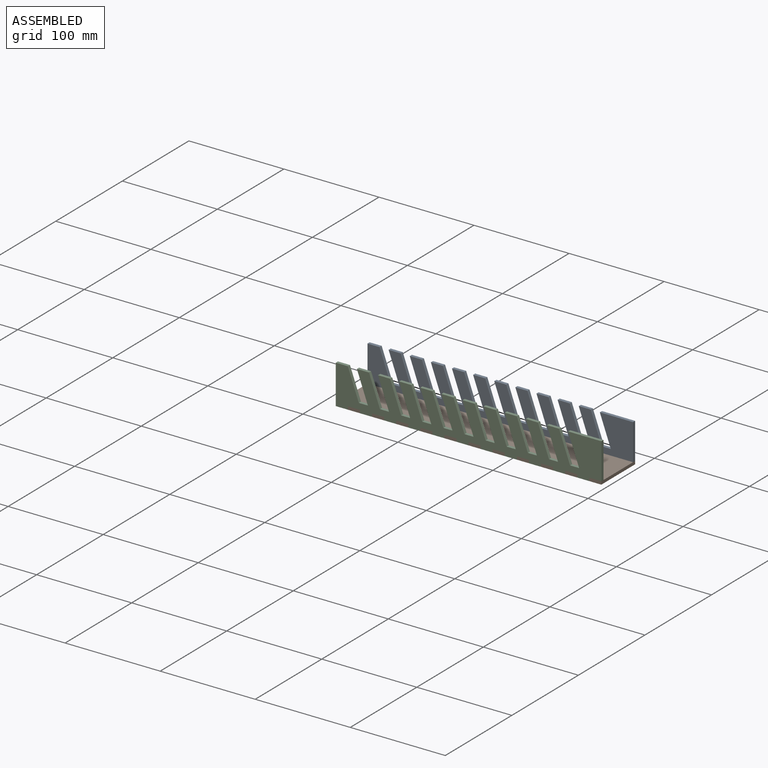
[diagram: assembled view]
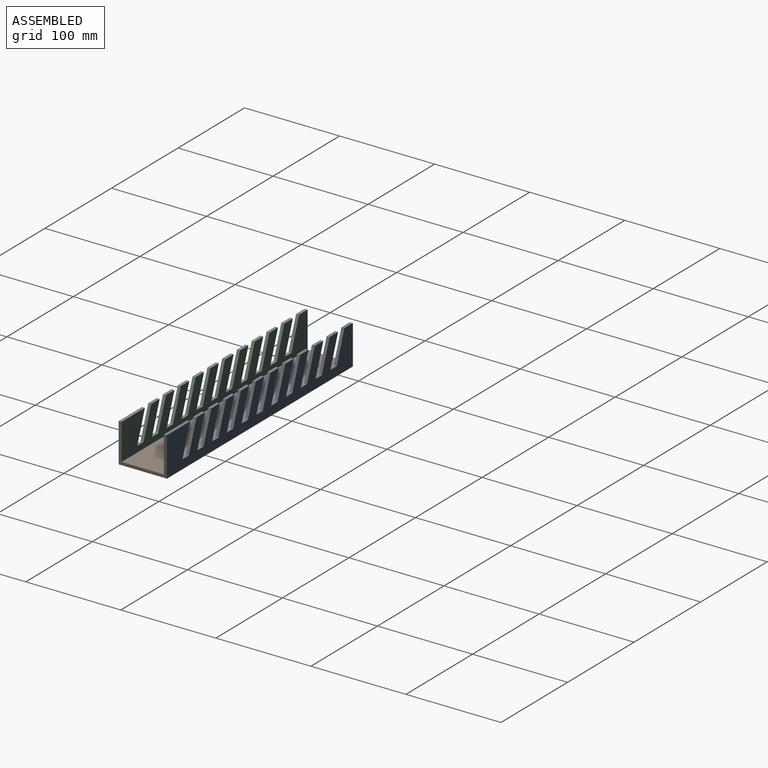
[diagram: assembled view, second angle]
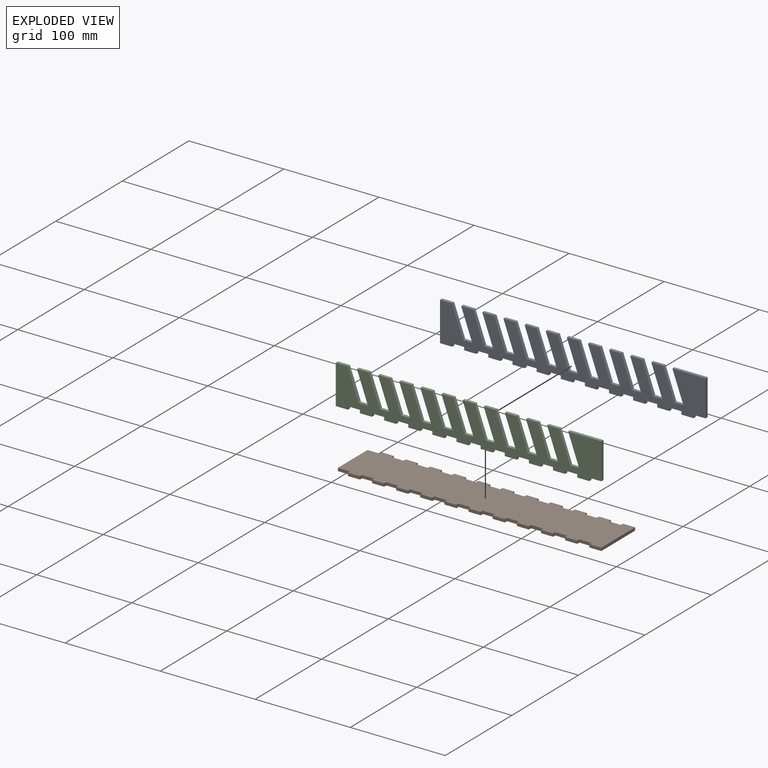
[diagram: exploded view]
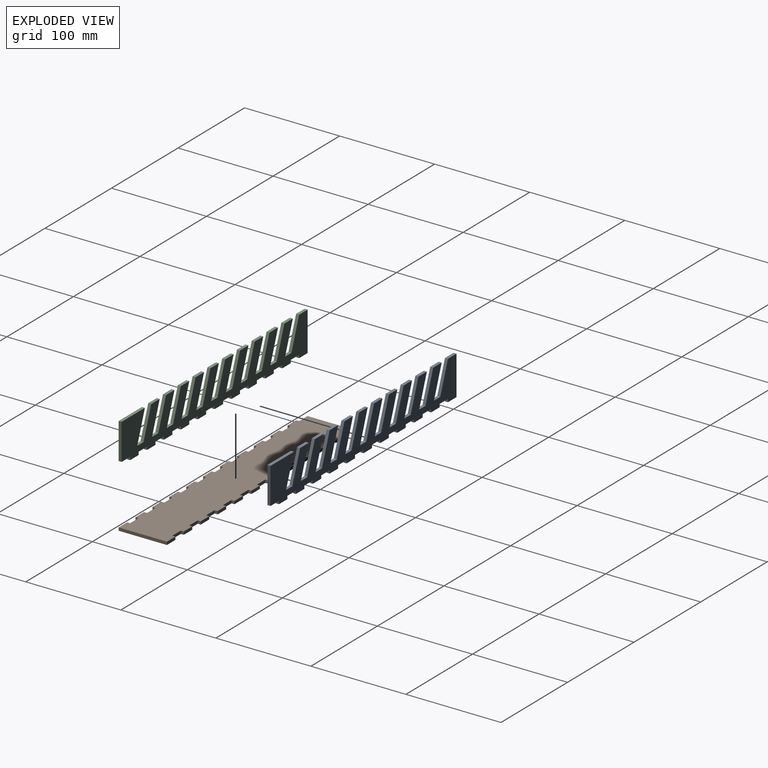
[diagram: exploded view, second angle]
ASSEMBLY  parts=3 mates=2
PART A: 92 faces, bbox 279.4x3.2x41.3 mm
  f0: plane 3.18x3.18mm, normal (-1,0,0), area 10.1mm2, adj f1,f89,f90,f91
  f1: plane 12.7x3.18mm, normal (0,0,-1), area 40.3mm2, adj f0,f2,f90,f91
  f2: plane 3.18x3.18mm, normal (1,0,0), area 10.1mm2, adj f1,f3,f90,f91
  f3: plane 12.7x3.18mm, normal (0,0,-1), area 40.3mm2, adj f2,f4,f90,f91
  f4: plane 3.18x3.18mm, normal (-1,0,0), area 10.1mm2, adj f3,f5,f90,f91
  f5: plane 12.7x3.18mm, normal (0,0,-1), area 40.3mm2, adj f4,f6,f90,f91
  f6: plane 3.18x3.18mm, normal (1,0,0), area 10.1mm2, adj f5,f7,f90,f91
  f7: plane 12.7x3.18mm, normal (0,0,-1), area 40.3mm2, adj f6,f8,f90,f91
  f8: plane 3.18x3.18mm, normal (-1,0,0), area 10.1mm2, adj f7,f9,f90,f91
  f9: plane 12.7x3.18mm, normal (0,0,-1), area 40.3mm2, adj f8,f10,f90,f91
  f10: plane 3.18x3.18mm, normal (1,0,0), area 10.1mm2, adj f9,f11,f90,f91
  f11: plane 12.7x3.18mm, normal (0,0,-1), area 40.3mm2, adj f10,f12,f90,f91
  f12: plane 3.18x3.18mm, normal (-1,0,0), area 10.1mm2, adj f11,f13,f90,f91
  f13: plane 12.7x3.18mm, normal (0,0,-1), area 40.3mm2, adj f12,f14,f90,f91
  f14: plane 3.18x3.18mm, normal (1,0,0), area 10.1mm2, adj f13,f15,f90,f91
  f15: plane 12.7x3.18mm, normal (0,0,-1), area 40.3mm2, adj f14,f16,f90,f91
  f16: plane 3.18x3.18mm, normal (-1,0,0), area 10.1mm2, adj f15,f17,f90,f91
  f17: plane 12.7x3.18mm, normal (0,0,-1), area 40.3mm2, adj f16,f18,f90,f91
  f18: plane 3.18x3.18mm, normal (1,0,0), area 10.1mm2, adj f17,f19,f90,f91
  f19: plane 12.7x3.18mm, normal (0,0,-1), area 40.3mm2, adj f18,f20,f90,f91
  f20: plane 3.18x3.18mm, normal (-1,0,0), area 10.1mm2, adj f19,f21,f90,f91
  f21: plane 12.7x3.18mm, normal (0,0,-1), area 40.3mm2, adj f20,f22,f90,f91
  f22: plane 3.18x3.18mm, normal (1,0,0), area 10.1mm2, adj f21,f23,f90,f91
  f23: plane 12.7x3.18mm, normal (0,0,-1), area 40.3mm2, adj f22,f24,f90,f91
  f24: plane 3.18x3.18mm, normal (-1,0,0), area 10.1mm2, adj f23,f25,f90,f91
  f25: plane 12.7x3.18mm, normal (0,0,-1), area 40.3mm2, adj f24,f26,f90,f91
  f26: plane 3.18x3.18mm, normal (1,0,0), area 10.1mm2, adj f25,f27,f90,f91
  f27: plane 12.7x3.18mm, normal (0,0,-1), area 40.3mm2, adj f26,f28,f90,f91
  f28: plane 3.18x3.18mm, normal (-1,0,0), area 10.1mm2, adj f27,f29,f90,f91
  f29: plane 12.7x3.18mm, normal (0,0,-1), area 40.3mm2, adj f28,f30,f90,f91
  f30: plane 3.18x3.18mm, normal (1,0,0), area 10.1mm2, adj f29,f31,f90,f91
  f31: plane 12.7x3.18mm, normal (0,0,-1), area 40.3mm2, adj f30,f32,f90,f91
  f32: plane 3.18x3.18mm, normal (-1,0,0), area 10.1mm2, adj f31,f33,f90,f91
  f33: plane 12.7x3.18mm, normal (0,0,-1), area 40.3mm2, adj f32,f34,f90,f91
  f34: plane 3.18x3.18mm, normal (1,0,0), area 10.1mm2, adj f33,f35,f90,f91
  f35: plane 12.7x3.18mm, normal (0,0,-1), area 40.3mm2, adj f34,f36,f90,f91
  f36: plane 3.18x3.18mm, normal (-1,0,0), area 10.1mm2, adj f35,f37,f90,f91
  f37: plane 12.7x3.18mm, normal (0,0,-1), area 40.3mm2, adj f36,f38,f90,f91
  f38: plane 3.18x3.18mm, normal (1,0,0), area 10.1mm2, adj f37,f39,f90,f91
  f39: plane 12.7x3.18mm, normal (0,0,-1), area 40.3mm2, adj f38,f40,f90,f91
  f40: plane 38.1x3.18mm, normal (1,0,0), area 121mm2, adj f39,f41,f90,f91
  f41: plane 34.93x3.18mm, normal (0,0,1), area 110.9mm2, adj f40,f42,f90,f91
  f42: plane 31.75x11.56mm, normal (-0.94,0,-0.34), area 107.3mm2, adj f41,f43,f90,f91
  f43: plane 9.53x3.18mm, normal (0,0,1), area 30.2mm2, adj f42,f44,f90,f91
  f44: plane 31.75x11.56mm, normal (0.94,0,0.34), area 107.3mm2, adj f43,f45,f90,f91
  f45: plane 12.7x3.18mm, normal (0,0,1), area 40.3mm2, adj f44,f46,f90,f91
  f46: plane 31.75x11.56mm, normal (-0.94,0,-0.34), area 107.3mm2, adj f45,f47,f90,f91
  f47: plane 9.53x3.18mm, normal (0,0,1), area 30.2mm2, adj f46,f48,f90,f91
  f48: plane 31.75x11.56mm, normal (0.94,0,0.34), area 107.3mm2, adj f47,f49,f90,f91
  f49: plane 12.7x3.18mm, normal (0,0,1), area 40.3mm2, adj f48,f50,f90,f91
  f50: plane 31.75x11.56mm, normal (-0.94,0,-0.34), area 107.3mm2, adj f49,f51,f90,f91
  f51: plane 9.53x3.18mm, normal (0,0,1), area 30.2mm2, adj f50,f52,f90,f91
  f52: plane 31.75x11.56mm, normal (0.94,0,0.34), area 107.3mm2, adj f51,f53,f90,f91
  f53: plane 12.7x3.18mm, normal (0,0,1), area 40.3mm2, adj f52,f54,f90,f91
  f54: plane 31.75x11.56mm, normal (-0.94,0,-0.34), area 107.3mm2, adj f53,f55,f90,f91
  f55: plane 9.53x3.18mm, normal (0,0,1), area 30.2mm2, adj f54,f56,f90,f91
  f56: plane 31.75x11.56mm, normal (0.94,0,0.34), area 107.3mm2, adj f55,f57,f90,f91
  f57: plane 12.7x3.18mm, normal (0,0,1), area 40.3mm2, adj f56,f58,f90,f91
  f58: plane 31.75x11.56mm, normal (-0.94,0,-0.34), area 107.3mm2, adj f57,f59,f90,f91
  f59: plane 9.53x3.18mm, normal (0,0,1), area 30.2mm2, adj f58,f60,f90,f91
  f60: plane 31.75x11.56mm, normal (0.94,0,0.34), area 107.3mm2, adj f59,f61,f90,f91
  f61: plane 12.7x3.18mm, normal (0,0,1), area 40.3mm2, adj f60,f62,f90,f91
  f62: plane 31.75x11.56mm, normal (-0.94,0,-0.34), area 107.3mm2, adj f61,f63,f90,f91
  f63: plane 9.53x3.18mm, normal (0,0,1), area 30.2mm2, adj f62,f64,f90,f91
  f64: plane 31.75x11.56mm, normal (0.94,0,0.34), area 107.3mm2, adj f63,f65,f90,f91
  f65: plane 12.7x3.18mm, normal (0,0,1), area 40.3mm2, adj f64,f66,f90,f91
  f66: plane 31.75x11.56mm, normal (-0.94,0,-0.34), area 107.3mm2, adj f65,f67,f90,f91
  f67: plane 9.53x3.18mm, normal (0,0,1), area 30.2mm2, adj f66,f68,f90,f91
  f68: plane 31.75x11.56mm, normal (0.94,0,0.34), area 107.3mm2, adj f67,f69,f90,f91
  f69: plane 12.7x3.18mm, normal (0,0,1), area 40.3mm2, adj f68,f70,f90,f91
  f70: plane 31.75x11.56mm, normal (-0.94,0,-0.34), area 107.3mm2, adj f69,f71,f90,f91
  f71: plane 9.53x3.18mm, normal (0,0,1), area 30.2mm2, adj f70,f72,f90,f91
  f72: plane 31.75x11.56mm, normal (0.94,0,0.34), area 107.3mm2, adj f71,f73,f90,f91
  f73: plane 12.7x3.18mm, normal (0,0,1), area 40.3mm2, adj f72,f74,f90,f91
  f74: plane 31.75x11.56mm, normal (-0.94,0,-0.34), area 107.3mm2, adj f73,f75,f90,f91
  f75: plane 9.53x3.18mm, normal (0,0,1), area 30.2mm2, adj f74,f76,f90,f91
  f76: plane 31.75x11.56mm, normal (0.94,0,0.34), area 107.3mm2, adj f75,f77,f90,f91
  f77: plane 12.7x3.18mm, normal (0,0,1), area 40.3mm2, adj f76,f78,f90,f91
  f78: plane 31.75x11.56mm, normal (-0.94,0,-0.34), area 107.3mm2, adj f77,f79,f90,f91
  f79: plane 9.53x3.18mm, normal (0,0,1), area 30.2mm2, adj f78,f80,f90,f91
  f80: plane 31.75x11.56mm, normal (0.94,0,0.34), area 107.3mm2, adj f79,f81,f90,f91
  f81: plane 12.7x3.18mm, normal (0,0,1), area 40.3mm2, adj f80,f82,f90,f91
  f82: plane 31.75x11.56mm, normal (-0.94,0,-0.34), area 107.3mm2, adj f81,f83,f90,f91
  f83: plane 9.53x3.18mm, normal (0,0,1), area 30.2mm2, adj f82,f84,f90,f91
  f84: plane 31.75x11.56mm, normal (0.94,0,0.34), area 107.3mm2, adj f83,f85,f90,f91
  f85: plane 12.7x3.18mm, normal (0,0,1), area 40.3mm2, adj f84,f86,f90,f91
  f86: plane 41.28x3.18mm, normal (-1,0,0), area 131mm2, adj f85,f87,f90,f91
  f87: plane 12.7x3.18mm, normal (0,0,-1), area 40.3mm2, adj f86,f88,f90,f91
  f88: plane 3.18x3.18mm, normal (1,0,0), area 10.1mm2, adj f87,f89,f90,f91
  f89: plane 12.7x3.18mm, normal (0,0,-1), area 40.3mm2, adj f0,f88,f90,f91
  f90: plane 279.4x41.28mm, normal (0,-1,0), area 7762.1mm2, adj f0,f1,f2,f3,f4,f5,f6,f7
  f91: plane 279.4x41.28mm, normal (0,1,0), area 7762.1mm2, adj f0,f1,f2,f3,f4,f5,f6,f7
PART B: 90 faces, bbox 279.4x3.2x50.8 mm
  f0: plane 3.18x3.18mm, normal (1,0,0), area 10.1mm2, adj f1,f87,f88,f89
  f1: plane 12.7x3.18mm, normal (0,0,1), area 40.3mm2, adj f0,f2,f88,f89
  f2: plane 3.18x3.18mm, normal (-1,0,0), area 10.1mm2, adj f1,f3,f88,f89
  f3: plane 12.7x3.18mm, normal (0,0,1), area 40.3mm2, adj f2,f4,f88,f89
  f4: plane 3.18x3.18mm, normal (1,0,0), area 10.1mm2, adj f3,f5,f88,f89
  f5: plane 12.7x3.18mm, normal (0,0,1), area 40.3mm2, adj f4,f6,f88,f89
  f6: plane 3.18x3.18mm, normal (-1,0,0), area 10.1mm2, adj f5,f7,f88,f89
  f7: plane 12.7x3.18mm, normal (0,0,1), area 40.3mm2, adj f6,f8,f88,f89
  f8: plane 44.45x3.18mm, normal (-1,0,0), area 141.1mm2, adj f7,f9,f88,f89
  f9: plane 12.7x3.18mm, normal (0,0,-1), area 40.3mm2, adj f8,f10,f88,f89
  f10: plane 3.18x3.18mm, normal (-1,0,0), area 10.1mm2, adj f9,f11,f88,f89
  f11: plane 12.7x3.18mm, normal (0,0,-1), area 40.3mm2, adj f10,f12,f88,f89
  f12: plane 3.18x3.18mm, normal (1,0,0), area 10.1mm2, adj f11,f13,f88,f89
  f13: plane 12.7x3.18mm, normal (0,0,-1), area 40.3mm2, adj f12,f14,f88,f89
  f14: plane 3.18x3.18mm, normal (-1,0,0), area 10.1mm2, adj f13,f15,f88,f89
  f15: plane 12.7x3.18mm, normal (0,0,-1), area 40.3mm2, adj f14,f16,f88,f89
  f16: plane 3.18x3.18mm, normal (1,0,0), area 10.1mm2, adj f15,f17,f88,f89
  f17: plane 12.7x3.18mm, normal (0,0,-1), area 40.3mm2, adj f16,f18,f88,f89
  f18: plane 3.18x3.18mm, normal (-1,0,0), area 10.1mm2, adj f17,f19,f88,f89
  f19: plane 12.7x3.18mm, normal (0,0,-1), area 40.3mm2, adj f18,f20,f88,f89
  f20: plane 3.18x3.18mm, normal (1,0,0), area 10.1mm2, adj f19,f21,f88,f89
  f21: plane 12.7x3.18mm, normal (0,0,-1), area 40.3mm2, adj f20,f22,f88,f89
  f22: plane 3.18x3.18mm, normal (-1,0,0), area 10.1mm2, adj f21,f23,f88,f89
  f23: plane 12.7x3.18mm, normal (0,0,-1), area 40.3mm2, adj f22,f24,f88,f89
  f24: plane 3.18x3.18mm, normal (1,0,0), area 10.1mm2, adj f23,f25,f88,f89
  f25: plane 12.7x3.18mm, normal (0,0,-1), area 40.3mm2, adj f24,f26,f88,f89
  f26: plane 3.18x3.18mm, normal (-1,0,0), area 10.1mm2, adj f25,f27,f88,f89
  f27: plane 12.7x3.18mm, normal (0,0,-1), area 40.3mm2, adj f26,f28,f88,f89
  f28: plane 3.18x3.18mm, normal (1,0,0), area 10.1mm2, adj f27,f29,f88,f89
  f29: plane 12.7x3.18mm, normal (0,0,-1), area 40.3mm2, adj f28,f30,f88,f89
  f30: plane 3.18x3.18mm, normal (-1,0,0), area 10.1mm2, adj f29,f31,f88,f89
  f31: plane 12.7x3.18mm, normal (0,0,-1), area 40.3mm2, adj f30,f32,f88,f89
  f32: plane 3.18x3.18mm, normal (1,0,0), area 10.1mm2, adj f31,f33,f88,f89
  f33: plane 12.7x3.18mm, normal (0,0,-1), area 40.3mm2, adj f32,f34,f88,f89
  f34: plane 3.18x3.18mm, normal (-1,0,0), area 10.1mm2, adj f33,f35,f88,f89
  f35: plane 12.7x3.18mm, normal (0,0,-1), area 40.3mm2, adj f34,f36,f88,f89
  f36: plane 3.18x3.18mm, normal (1,0,0), area 10.1mm2, adj f35,f37,f88,f89
  f37: plane 12.7x3.18mm, normal (0,0,-1), area 40.3mm2, adj f36,f38,f88,f89
  f38: plane 3.18x3.18mm, normal (-1,0,0), area 10.1mm2, adj f37,f39,f88,f89
  f39: plane 12.7x3.18mm, normal (0,0,-1), area 40.3mm2, adj f38,f40,f88,f89
  f40: plane 3.18x3.18mm, normal (1,0,0), area 10.1mm2, adj f39,f41,f88,f89
  f41: plane 12.7x3.18mm, normal (0,0,-1), area 40.3mm2, adj f40,f42,f88,f89
  f42: plane 3.18x3.18mm, normal (-1,0,0), area 10.1mm2, adj f41,f43,f88,f89
  f43: plane 12.7x3.18mm, normal (0,0,-1), area 40.3mm2, adj f42,f44,f88,f89
  f44: plane 3.18x3.18mm, normal (1,0,0), area 10.1mm2, adj f43,f45,f88,f89
  f45: plane 12.7x3.18mm, normal (0,0,-1), area 40.3mm2, adj f44,f46,f88,f89
  f46: plane 3.18x3.18mm, normal (-1,0,0), area 10.1mm2, adj f45,f47,f88,f89
  f47: plane 12.7x3.18mm, normal (0,0,-1), area 40.3mm2, adj f46,f48,f88,f89
  f48: plane 3.18x3.18mm, normal (1,0,0), area 10.1mm2, adj f47,f49,f88,f89
  f49: plane 12.7x3.18mm, normal (0,0,-1), area 40.3mm2, adj f48,f50,f88,f89
  f50: plane 3.18x3.18mm, normal (-1,0,0), area 10.1mm2, adj f49,f51,f88,f89
  f51: plane 12.7x3.18mm, normal (0,0,-1), area 40.3mm2, adj f50,f52,f88,f89
  f52: plane 50.8x3.18mm, normal (1,0,0), area 161.3mm2, adj f51,f53,f88,f89
  f53: plane 12.7x3.18mm, normal (0,0,1), area 40.3mm2, adj f52,f54,f88,f89
  f54: plane 3.18x3.18mm, normal (-1,0,0), area 10.1mm2, adj f53,f55,f88,f89
  f55: plane 12.7x3.18mm, normal (0,0,1), area 40.3mm2, adj f54,f56,f88,f89
  f56: plane 3.18x3.18mm, normal (1,0,0), area 10.1mm2, adj f55,f57,f88,f89
  f57: plane 12.7x3.18mm, normal (0,0,1), area 40.3mm2, adj f56,f58,f88,f89
  f58: plane 3.18x3.18mm, normal (-1,0,0), area 10.1mm2, adj f57,f59,f88,f89
  f59: plane 12.7x3.18mm, normal (0,0,1), area 40.3mm2, adj f58,f60,f88,f89
  f60: plane 3.18x3.18mm, normal (1,0,0), area 10.1mm2, adj f59,f61,f88,f89
  f61: plane 12.7x3.18mm, normal (0,0,1), area 40.3mm2, adj f60,f62,f88,f89
  f62: plane 3.18x3.18mm, normal (-1,0,0), area 10.1mm2, adj f61,f63,f88,f89
  f63: plane 12.7x3.18mm, normal (0,0,1), area 40.3mm2, adj f62,f64,f88,f89
  f64: plane 3.18x3.18mm, normal (1,0,0), area 10.1mm2, adj f63,f65,f88,f89
  f65: plane 12.7x3.18mm, normal (0,0,1), area 40.3mm2, adj f64,f66,f88,f89
  f66: plane 3.18x3.18mm, normal (-1,0,0), area 10.1mm2, adj f65,f67,f88,f89
  f67: plane 12.7x3.18mm, normal (0,0,1), area 40.3mm2, adj f66,f68,f88,f89
  f68: plane 3.18x3.18mm, normal (1,0,0), area 10.1mm2, adj f67,f69,f88,f89
  f69: plane 12.7x3.18mm, normal (0,0,1), area 40.3mm2, adj f68,f70,f88,f89
  f70: plane 3.18x3.18mm, normal (-1,0,0), area 10.1mm2, adj f69,f71,f88,f89
  f71: plane 12.7x3.18mm, normal (0,0,1), area 40.3mm2, adj f70,f72,f88,f89
  f72: plane 3.18x3.18mm, normal (1,0,0), area 10.1mm2, adj f71,f73,f88,f89
  f73: plane 12.7x3.18mm, normal (0,0,1), area 40.3mm2, adj f72,f74,f88,f89
  f74: plane 3.18x3.18mm, normal (-1,0,0), area 10.1mm2, adj f73,f75,f88,f89
  f75: plane 12.7x3.18mm, normal (0,0,1), area 40.3mm2, adj f74,f76,f88,f89
  f76: plane 3.18x3.18mm, normal (1,0,0), area 10.1mm2, adj f75,f77,f88,f89
  f77: plane 12.7x3.18mm, normal (0,0,1), area 40.3mm2, adj f76,f78,f88,f89
  f78: plane 3.18x3.18mm, normal (-1,0,0), area 10.1mm2, adj f77,f79,f88,f89
  f79: plane 12.7x3.18mm, normal (0,0,1), area 40.3mm2, adj f78,f80,f88,f89
  f80: plane 3.18x3.18mm, normal (1,0,0), area 10.1mm2, adj f79,f81,f88,f89
  f81: plane 12.7x3.18mm, normal (0,0,1), area 40.3mm2, adj f80,f82,f88,f89
  f82: plane 3.18x3.18mm, normal (-1,0,0), area 10.1mm2, adj f81,f83,f88,f89
  f83: plane 12.7x3.18mm, normal (0,0,1), area 40.3mm2, adj f82,f84,f88,f89
  f84: plane 3.18x3.18mm, normal (1,0,0), area 10.1mm2, adj f83,f85,f88,f89
  f85: plane 12.7x3.18mm, normal (0,0,1), area 40.3mm2, adj f84,f86,f88,f89
  f86: plane 3.18x3.18mm, normal (-1,0,0), area 10.1mm2, adj f85,f87,f88,f89
  f87: plane 12.7x3.18mm, normal (0,0,1), area 40.3mm2, adj f0,f86,f88,f89
  f88: plane 279.4x50.8mm, normal (0,-1,0), area 13306.4mm2, adj f0,f1,f2,f3,f4,f5,f6,f7
  f89: plane 279.4x50.8mm, normal (0,1,0), area 13306.4mm2, adj f0,f1,f2,f3,f4,f5,f6,f7
PART C: same geometry as A
PLACE A t=(-103.08,61.94,-30.08)mm
PLACE B rot(axis=(1,0,0),90deg) t=(-103.08,-22.63,-30.08)mm
PLACE C t=(-103.08,14.32,-30.08)mm
MATE fastened B.f6 <-> C.f88  axis (-1,0,0) through (-90.38,12.73,-31.66)mm
MATE fastened A.f38 <-> B.f50  axis (1,0,0) through (163.62,60.36,-31.66)mm
